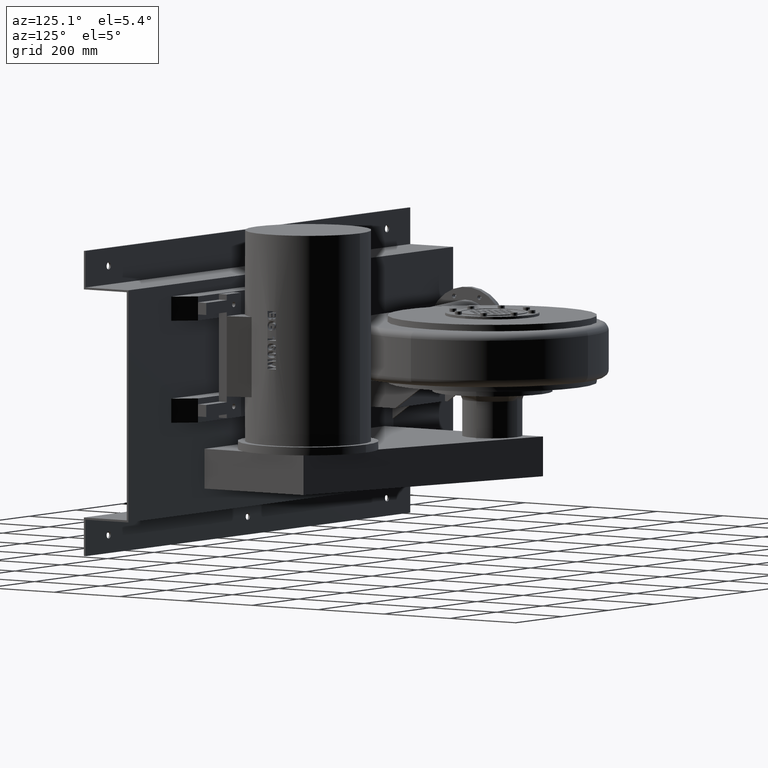
[diagram: clean part render]
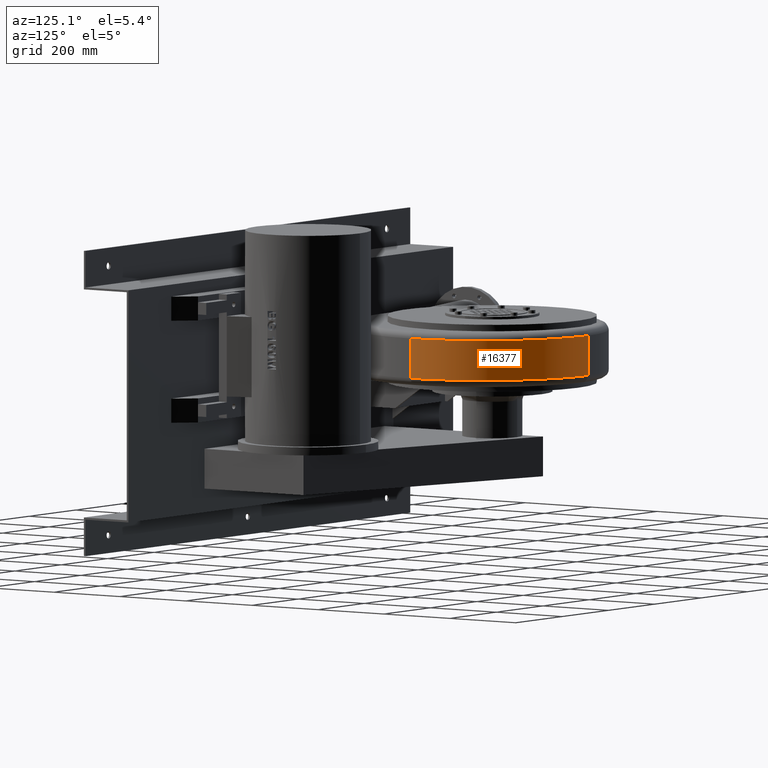
[diagram: same view with one face highlighted and labeled with its STEP entity id]
A machine part, auxiliary view. The second image highlights one B-rep face of the part: STEP entity #16377.
In plain terms, the highlighted cylindrical surface (partial cylindrical patch) has radius 315 mm, axis along (-0, 0, 1).
Its self-contained STEP definition (entity closure, byte-faithful):
#16149=CARTESIAN_POINT('',(345.000000000000060,-1.326050E-013,49.499999999999964));
#16150=VERTEX_POINT('',#16149);
#16183=CARTESIAN_POINT('',(30.000000000000053,314.999999999999890,49.499999999999893));
#16184=VERTEX_POINT('',#16183);
#16185=CARTESIAN_POINT('',(30.000000000000053,-1.326050E-013,49.499999999999964));
#16186=DIRECTION('',(1.184238E-016,1.184238E-016,1.0));
#16187=DIRECTION('',(0.707106781186548,0.707106781186547,-1.674765E-016));
#16188=AXIS2_PLACEMENT_3D('',#16185,#16186,#16187);
#16189=CIRCLE('',#16188,315.0);
#16190=EDGE_CURVE('',#16150,#16184,#16189,.T.);
#16328=CARTESIAN_POINT('',(30.000000000000053,314.999999999999890,-49.500000000000107));
#16329=VERTEX_POINT('',#16328);
#16344=CARTESIAN_POINT('',(30.000000000000053,314.999999999999890,-49.500000000000107));
#16345=DIRECTION('',(0.0,0.0,1.0));
#16346=VECTOR('',#16345,99.0);
#16347=LINE('',#16344,#16346);
#16348=EDGE_CURVE('',#16329,#16184,#16347,.T.);
#16353=CARTESIAN_POINT('',(30.000000000000053,-1.443290E-013,-3.187976E-014));
#16354=DIRECTION('',(-6.833984E-031,2.368476E-016,1.0));
#16355=DIRECTION('',(1.0,0.0,0.0));
#16356=AXIS2_PLACEMENT_3D('',#16353,#16354,#16355);
#16357=CYLINDRICAL_SURFACE('',#16356,315.0);
#16358=CARTESIAN_POINT('',(345.000000000000060,-1.560529E-013,-49.500000000000036));
#16359=VERTEX_POINT('',#16358);
#16360=CARTESIAN_POINT('',(30.000000000000053,-1.560529E-013,-49.500000000000036));
#16361=DIRECTION('',(-1.184238E-016,-1.184238E-016,-1.0));
#16362=DIRECTION('',(0.707106781186548,0.707106781186547,-1.674765E-016));
#16363=AXIS2_PLACEMENT_3D('',#16360,#16361,#16362);
#16364=CIRCLE('',#16363,315.0);
#16365=EDGE_CURVE('',#16329,#16359,#16364,.T.);
#16366=ORIENTED_EDGE('',*,*,#16365,.F.);
#16367=ORIENTED_EDGE('',*,*,#16348,.T.);
#16368=ORIENTED_EDGE('',*,*,#16190,.F.);
#16369=CARTESIAN_POINT('',(345.000000000000060,-1.326050E-013,49.499999999999964));
#16370=DIRECTION('',(0.0,0.0,-1.0));
#16371=VECTOR('',#16370,99.0);
#16372=LINE('',#16369,#16371);
#16373=EDGE_CURVE('',#16150,#16359,#16372,.T.);
#16374=ORIENTED_EDGE('',*,*,#16373,.T.);
#16375=EDGE_LOOP('',(#16366,#16367,#16368,#16374));
#16376=FACE_OUTER_BOUND('',#16375,.T.);
#16377=ADVANCED_FACE('',(#16376),#16357,.T.);